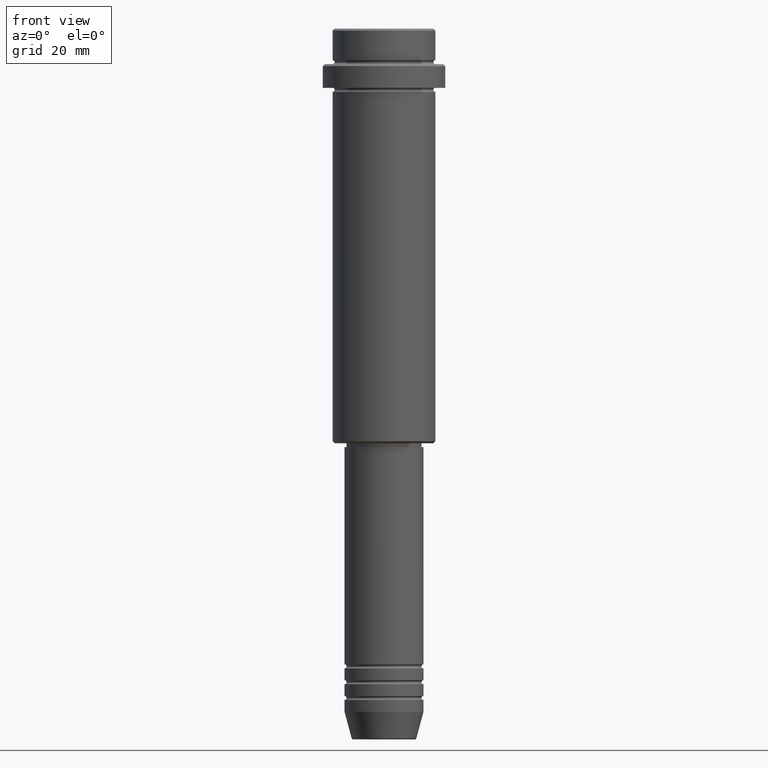
[diagram: clean part render]
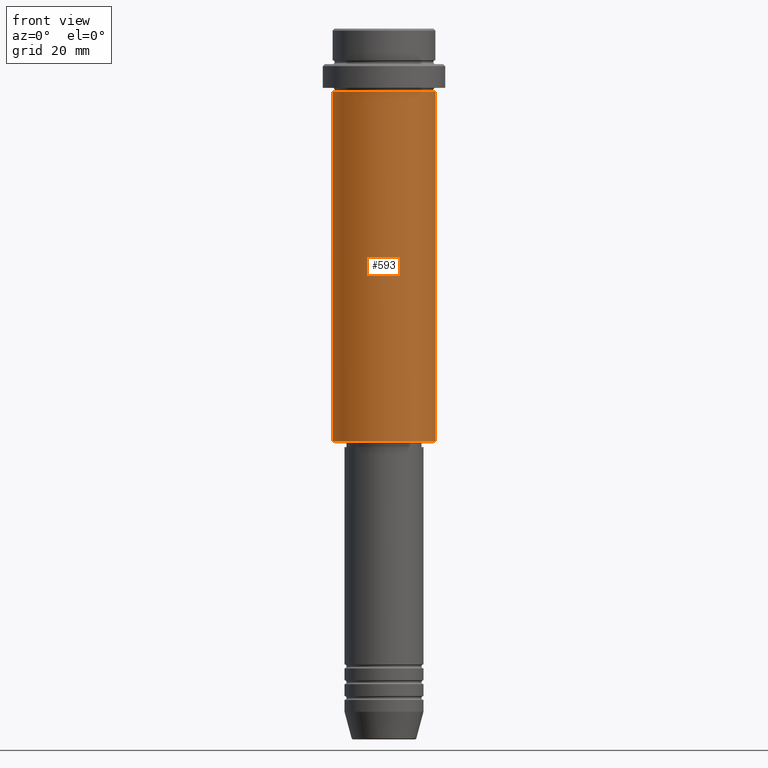
[diagram: same view with one face highlighted and labeled with its STEP entity id]
A machine part, front view. The second image highlights one B-rep face of the part: STEP entity #593.
In plain terms, the highlighted cylindrical surface (partial cylindrical patch) has radius 13 mm, axis along (-0, -0, 1).
Its self-contained STEP definition (entity closure, byte-faithful):
#95 = AXIS2_PLACEMENT_3D ( 'NONE', #596, #924, #1358 ) ;
#101 = ORIENTED_EDGE ( 'NONE', *, *, #176, .T. ) ;
#174 = CARTESIAN_POINT ( 'NONE',  ( -13.00000000000000000, 1.592040838891559095E-15, 0.000000000000000000 ) ) ;
#176 = EDGE_CURVE ( 'NONE', #1055, #1294, #1364, .T. ) ;
#221 = EDGE_CURVE ( 'NONE', #714, #1294, #1026, .T. ) ;
#254 = FACE_OUTER_BOUND ( 'NONE', #1050, .T. ) ;
#496 = DIRECTION ( 'NONE',  ( -1.000000000000000000, 0.000000000000000000, 0.000000000000000000 ) ) ;
#536 = CIRCLE ( 'NONE', #1351, 13.00000000000000000 ) ;
#569 = EDGE_CURVE ( 'NONE', #747, #714, #1264, .T. ) ;
#575 = VECTOR ( 'NONE', #1019, 1000.000000000000000 ) ;
#593 = ADVANCED_FACE ( 'NONE', ( #254 ), #1150, .T. ) ;
#596 = CARTESIAN_POINT ( 'NONE',  ( 0.000000000000000000, 0.000000000000000000, -15.99999999999997335 ) ) ;
#601 = CARTESIAN_POINT ( 'NONE',  ( 13.00000000000000000, 0.000000000000000000, -104.4999999999999574 ) ) ;
#608 = ORIENTED_EDGE ( 'NONE', *, *, #221, .F. ) ;
#714 = VERTEX_POINT ( 'NONE', #1068 ) ;
#747 = VERTEX_POINT ( 'NONE', #1087 ) ;
#823 = CARTESIAN_POINT ( 'NONE',  ( 0.000000000000000000, 0.000000000000000000, 0.000000000000000000 ) ) ;
#826 = ORIENTED_EDGE ( 'NONE', *, *, #1042, .T. ) ;
#912 = VECTOR ( 'NONE', #1020, 1000.000000000000000 ) ;
#924 = DIRECTION ( 'NONE',  ( -0.000000000000000000, -0.000000000000000000, 1.000000000000000000 ) ) ;
#928 = DIRECTION ( 'NONE',  ( -0.000000000000000000, -0.000000000000000000, 1.000000000000000000 ) ) ;
#930 = CARTESIAN_POINT ( 'NONE',  ( 13.00000000000000000, 0.000000000000000000, 0.000000000000000000 ) ) ;
#1019 = DIRECTION ( 'NONE',  ( -0.000000000000000000, -0.000000000000000000, 1.000000000000000000 ) ) ;
#1020 = DIRECTION ( 'NONE',  ( -0.000000000000000000, -0.000000000000000000, 1.000000000000000000 ) ) ;
#1026 = CIRCLE ( 'NONE', #95, 13.00000000000000000 ) ;
#1042 = EDGE_CURVE ( 'NONE', #747, #1055, #536, .T. ) ;
#1044 = CARTESIAN_POINT ( 'NONE',  ( 13.00000000000000000, 0.000000000000000000, -15.99999999999997335 ) ) ;
#1050 = EDGE_LOOP ( 'NONE', ( #1092, #826, #101, #608 ) ) ;
#1055 = VERTEX_POINT ( 'NONE', #601 ) ;
#1068 = CARTESIAN_POINT ( 'NONE',  ( -13.00000000000000000, 1.592040838891559095E-15, -15.99999999999997335 ) ) ;
#1087 = CARTESIAN_POINT ( 'NONE',  ( -13.00000000000000000, 1.592040838891559095E-15, -104.4999999999999574 ) ) ;
#1092 = ORIENTED_EDGE ( 'NONE', *, *, #569, .F. ) ;
#1143 = AXIS2_PLACEMENT_3D ( 'NONE', #823, #1157, #1370 ) ;
#1150 = CYLINDRICAL_SURFACE ( 'NONE', #1143, 13.00000000000000000 ) ;
#1157 = DIRECTION ( 'NONE',  ( -0.000000000000000000, -0.000000000000000000, 1.000000000000000000 ) ) ;
#1264 = LINE ( 'NONE', #174, #575 ) ;
#1294 = VERTEX_POINT ( 'NONE', #1044 ) ;
#1344 = CARTESIAN_POINT ( 'NONE',  ( 0.000000000000000000, 0.000000000000000000, -104.4999999999999574 ) ) ;
#1351 = AXIS2_PLACEMENT_3D ( 'NONE', #1344, #928, #496 ) ;
#1358 = DIRECTION ( 'NONE',  ( 1.000000000000000000, 0.000000000000000000, 0.000000000000000000 ) ) ;
#1364 = LINE ( 'NONE', #930, #912 ) ;
#1370 = DIRECTION ( 'NONE',  ( 1.000000000000000000, 0.000000000000000000, 0.000000000000000000 ) ) ;